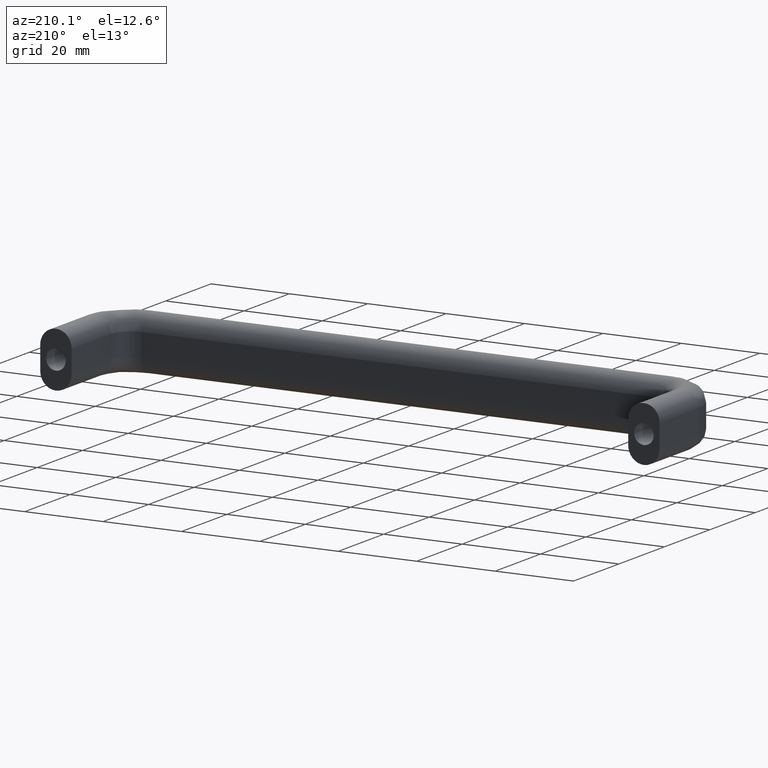
[diagram: clean part render]
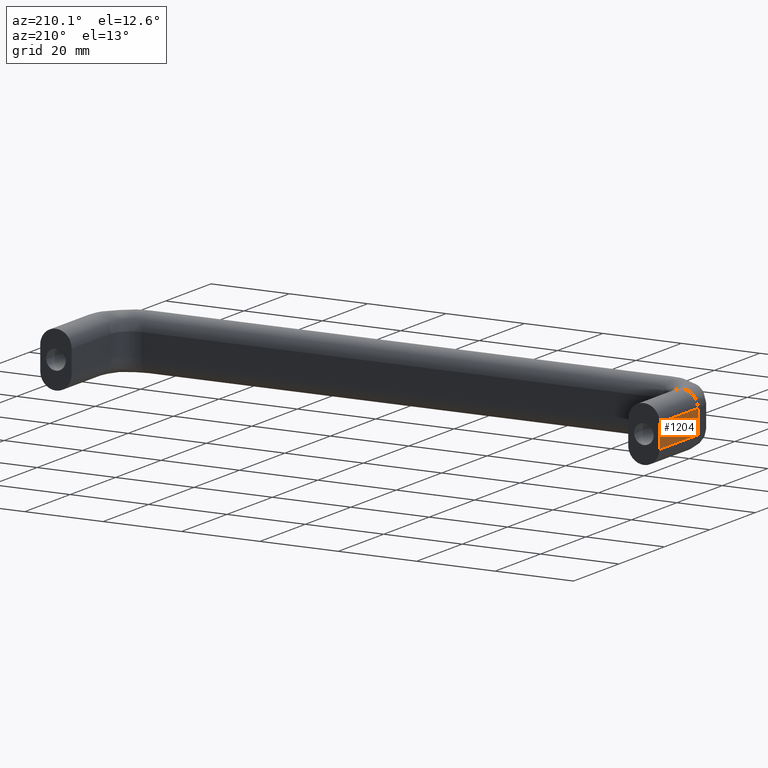
[diagram: same view with one face highlighted and labeled with its STEP entity id]
A machine part, auxiliary view. The second image highlights one B-rep face of the part: STEP entity #1204.
In plain terms, the highlighted face is a freeform B-spline surface patch.
Its self-contained STEP definition (entity closure, byte-faithful):
#962=CARTESIAN_POINT('',(-4.0,-17.0,-3.0));
#963=VERTEX_POINT('',#962);
#1026=CARTESIAN_POINT('',(-4.0,-17.0,3.0));
#1027=VERTEX_POINT('',#1026);
#1041=CARTESIAN_POINT('',(-4.0,-17.0,3.0));
#1042=CARTESIAN_POINT('',(-4.0,-17.0,-3.0));
#1043=QUASI_UNIFORM_CURVE('',1,(#1041,#1042),.UNSPECIFIED.,.F.,.U.);
#1044=EDGE_CURVE('',#1027,#963,#1043,.T.);
#1151=CARTESIAN_POINT('',(-4.0,0.0,-3.0));
#1152=VERTEX_POINT('',#1151);
#1153=CARTESIAN_POINT('',(-4.0,0.0,-3.0));
#1154=CARTESIAN_POINT('',(-4.0,-17.0,-3.0));
#1155=QUASI_UNIFORM_CURVE('',1,(#1153,#1154),.UNSPECIFIED.,.F.,.U.);
#1156=EDGE_CURVE('',#1152,#963,#1155,.T.);
#1183=CARTESIAN_POINT('',(-4.0,-17.849149967050710,-3.299699988370836));
#1184=CARTESIAN_POINT('',(-4.0,-17.849149967050710,3.299700149303376));
#1185=CARTESIAN_POINT('',(-4.0,0.849150423026235,-3.299699988370836));
#1186=CARTESIAN_POINT('',(-4.0,0.849150423026235,3.299700149303376));
#1187=B_SPLINE_SURFACE_WITH_KNOTS('',1,1,((#1183,#1185),(#1184,#1186)),.UNSPECIFIED.,.F.,.F.,.U.,(2,2),(2,2),(0.0,6.599400137674213),(0.0,18.698300390076941),.UNSPECIFIED.);
#1188=ORIENTED_EDGE('',*,*,#1156,.T.);
#1189=ORIENTED_EDGE('',*,*,#1044,.F.);
#1190=CARTESIAN_POINT('',(-4.0,0.0,3.0));
#1191=VERTEX_POINT('',#1190);
#1192=CARTESIAN_POINT('',(-4.0,0.0,3.0));
#1193=CARTESIAN_POINT('',(-4.0,-17.0,3.0));
#1194=QUASI_UNIFORM_CURVE('',1,(#1192,#1193),.UNSPECIFIED.,.F.,.U.);
#1195=EDGE_CURVE('',#1191,#1027,#1194,.T.);
#1196=ORIENTED_EDGE('',*,*,#1195,.F.);
#1197=CARTESIAN_POINT('',(-4.0,0.0,3.0));
#1198=CARTESIAN_POINT('',(-4.0,0.0,-3.0));
#1199=QUASI_UNIFORM_CURVE('',1,(#1197,#1198),.UNSPECIFIED.,.F.,.U.);
#1200=EDGE_CURVE('',#1191,#1152,#1199,.T.);
#1201=ORIENTED_EDGE('',*,*,#1200,.T.);
#1202=EDGE_LOOP('',(#1188,#1189,#1196,#1201));
#1203=FACE_OUTER_BOUND('',#1202,.T.);
#1204=ADVANCED_FACE('',(#1203),#1187,.T.);